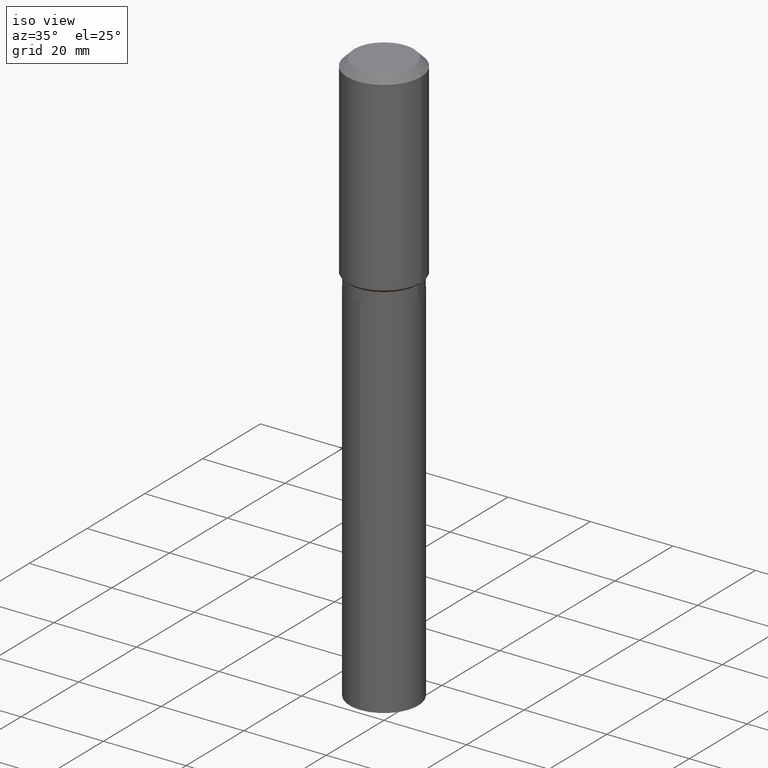
[diagram: clean part render]
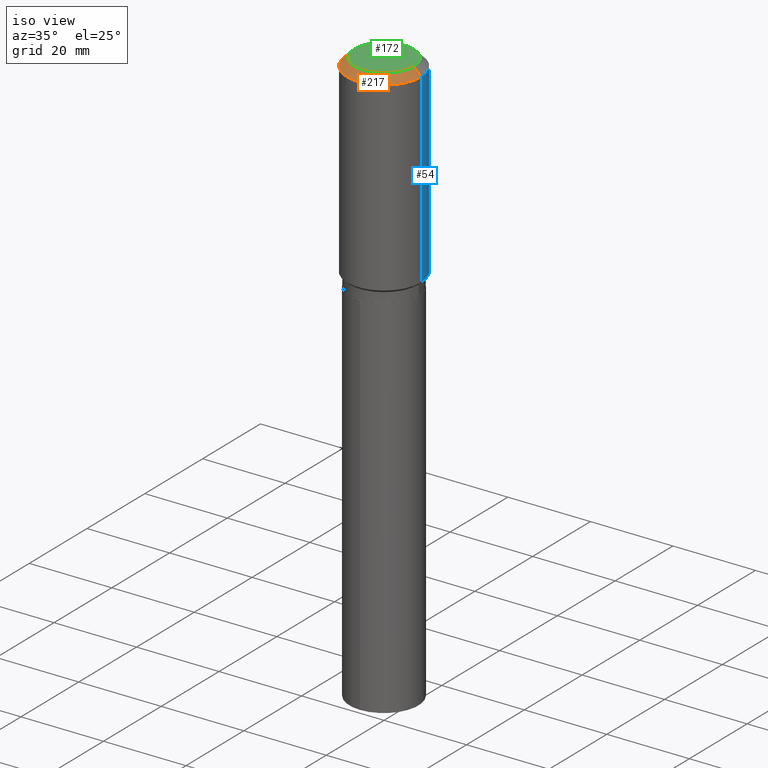
[diagram: same view with three faces highlighted in distinct colors, each labeled with its STEP entity id]
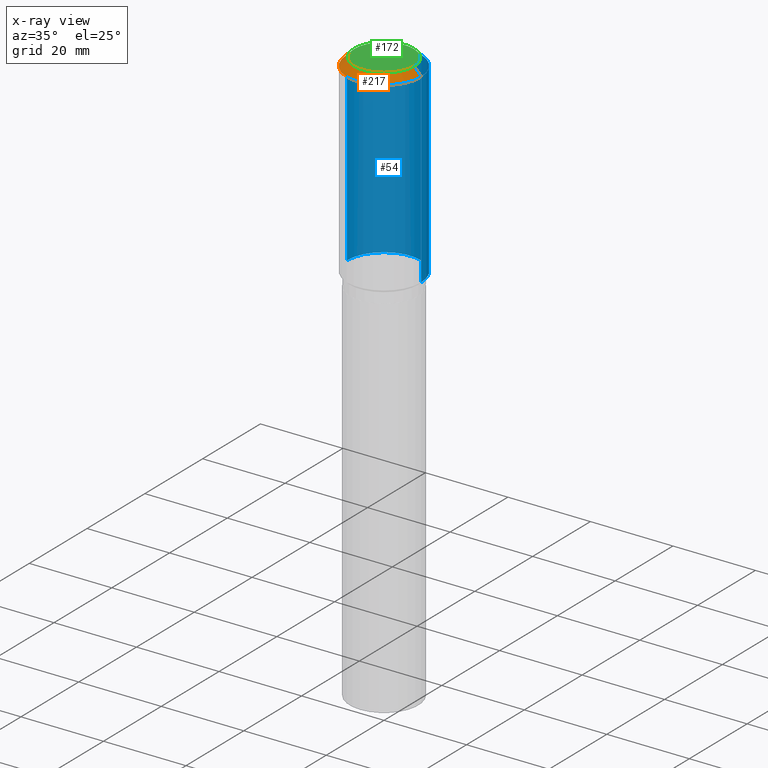
[diagram: x-ray of the same camera — body ghosted, the three highlighted faces saturated]
A machine part, iso view with three faces highlighted in distinct colors.
The next image is the same camera in x-ray (body ghosted, the three faces saturated) — at least one of them is partly hidden behind the body in this view.
Their STEP definitions:

[orange] entity #217 — the highlighted conical surface has half-angle 45 deg.
#29 = CARTESIAN_POINT ( 'NONE',  ( -0.3543499999999999983, 2.226971542354313655E-15, -0.07087000000000043265 ) ) ;
#72 = CARTESIAN_POINT ( 'NONE',  ( -0.3543499999999999983, -8.249709644559009364E-16, -0.07087000000000043265 ) ) ;
#74 = CARTESIAN_POINT ( 'NONE',  ( 0.3543499999999999983, -2.721854107321943733E-15, -0.07087000000000043265 ) ) ;
#81 = VECTOR ( 'NONE', #412, 39.37007874015748143 ) ;
#87 = ORIENTED_EDGE ( 'NONE', *, *, #313, .T. ) ;
#94 = EDGE_LOOP ( 'NONE', ( #303, #175, #196, #87 ) ) ;
#116 = VERTEX_POINT ( 'NONE', #74 ) ;
#139 = AXIS2_PLACEMENT_3D ( 'NONE', #218, #330, #488 ) ;
#154 = DIRECTION ( 'NONE',  ( 1.000000000000000000, -6.982962677686266711E-15, 0.000000000000000000 ) ) ;
#175 = ORIENTED_EDGE ( 'NONE', *, *, #381, .F. ) ;
#184 = EDGE_CURVE ( 'NONE', #419, #199, #477, .T. ) ;
#196 = ORIENTED_EDGE ( 'NONE', *, *, #184, .T. ) ;
#197 = CARTESIAN_POINT ( 'NONE',  ( 1.733103742943417062E-30, -2.474412824838152853E-16, -0.07087000000000043265 ) ) ;
#199 = VERTEX_POINT ( 'NONE', #72 ) ;
#214 = CIRCLE ( 'NONE', #490, 0.3543499999999999983 ) ;
#217 = ADVANCED_FACE ( 'NONE', ( #287 ), #350, .T. ) ;
#218 = CARTESIAN_POINT ( 'NONE',  ( 1.733103742943417062E-30, -2.474412824838152853E-16, -0.07087000000000043265 ) ) ;
#226 = DIRECTION ( 'NONE',  ( -2.445468806185136597E-29, 3.491481338843145583E-15, 1.000000000000000000 ) ) ;
#231 = LINE ( 'NONE', #315, #451 ) ;
#287 = FACE_OUTER_BOUND ( 'NONE', #94, .T. ) ;
#295 = AXIS2_PLACEMENT_3D ( 'NONE', #450, #226, #378 ) ;
#303 = ORIENTED_EDGE ( 'NONE', *, *, #367, .F. ) ;
#313 = EDGE_CURVE ( 'NONE', #199, #116, #214, .T. ) ;
#315 = CARTESIAN_POINT ( 'NONE',  ( 0.3543499999999999983, -2.678458747994157430E-15, -0.07087000000000043265 ) ) ;
#330 = DIRECTION ( 'NONE',  ( 2.445468806185136597E-29, -3.491481338843145583E-15, -1.000000000000000000 ) ) ;
#350 = CONICAL_SURFACE ( 'NONE', #139, 0.3543499999999999983, 0.7853981633974452814 ) ;
#367 = EDGE_CURVE ( 'NONE', #423, #116, #231, .T. ) ;
#378 = DIRECTION ( 'NONE',  ( 1.000000000000000000, -6.982962677686266711E-15, 4.876249319814053138E-29 ) ) ;
#381 = EDGE_CURVE ( 'NONE', #419, #423, #386, .T. ) ;
#386 = CIRCLE ( 'NONE', #295, 0.2834800000000000098 ) ;
#387 = DIRECTION ( 'NONE',  ( -2.445468806185136597E-29, 3.491481338843145583E-15, 1.000000000000000000 ) ) ;
#412 = DIRECTION ( 'NONE',  ( -0.7071067811865453523, 2.468850131082234184E-15, -0.7071067811865496822 ) ) ;
#419 = VERTEX_POINT ( 'NONE', #437 ) ;
#423 = VERTEX_POINT ( 'NONE', #433 ) ;
#433 = CARTESIAN_POINT ( 'NONE',  ( 0.2834800000000000098, -2.311636360201216027E-15, 3.860086710927458874E-18 ) ) ;
#437 = CARTESIAN_POINT ( 'NONE',  ( -0.2834800000000000098, 2.103250901112408108E-15, 3.860086710898179346E-18 ) ) ;
#450 = CARTESIAN_POINT ( 'NONE',  ( -9.439721640706191963E-47, 1.347742071746725396E-32, 3.860086710912455110E-18 ) ) ;
#451 = VECTOR ( 'NONE', #467, 39.37007874015748143 ) ;
#467 = DIRECTION ( 'NONE',  ( 0.7071067811865453523, -7.319954787623248157E-15, -0.7071067811865496822 ) ) ;
#477 = LINE ( 'NONE', #29, #81 ) ;
#488 = DIRECTION ( 'NONE',  ( -1.000000000000000000, 6.982962677686266711E-15, 0.000000000000000000 ) ) ;
#490 = AXIS2_PLACEMENT_3D ( 'NONE', #197, #387, #154 ) ;

[blue] entity #54 — the highlighted cylindrical surface (partial cylindrical patch) has radius 9.0005 mm, axis along (-0, 0, 1).
#6 = EDGE_CURVE ( 'NONE', #116, #199, #254, .T. ) ;
#8 = VERTEX_POINT ( 'NONE', #355 ) ;
#11 = ORIENTED_EDGE ( 'NONE', *, *, #117, .F. ) ;
#13 = DIRECTION ( 'NONE',  ( -2.445468806185136597E-29, 3.491481338843145583E-15, 1.000000000000000000 ) ) ;
#31 = LINE ( 'NONE', #329, #332 ) ;
#54 = ADVANCED_FACE ( 'NONE', ( #91 ), #168, .T. ) ;
#72 = CARTESIAN_POINT ( 'NONE',  ( -0.3543499999999999983, -8.249709644559009364E-16, -0.07087000000000043265 ) ) ;
#73 = EDGE_LOOP ( 'NONE', ( #224, #328, #413, #11 ) ) ;
#74 = CARTESIAN_POINT ( 'NONE',  ( 0.3543499999999999983, -2.721854107321943733E-15, -0.07087000000000043265 ) ) ;
#91 = FACE_OUTER_BOUND ( 'NONE', #73, .T. ) ;
#116 = VERTEX_POINT ( 'NONE', #74 ) ;
#117 = EDGE_CURVE ( 'NONE', #8, #116, #149, .T. ) ;
#123 = DIRECTION ( 'NONE',  ( 1.000000000000000000, -6.982962677686269077E-15, 0.000000000000000000 ) ) ;
#140 = EDGE_CURVE ( 'NONE', #421, #199, #31, .T. ) ;
#149 = LINE ( 'NONE', #373, #170 ) ;
#163 = CARTESIAN_POINT ( 'NONE',  ( 4.509322205165082609E-29, -6.438117014759818997E-15, -1.843950000000000200 ) ) ;
#168 = CYLINDRICAL_SURFACE ( 'NONE', #211, 0.3543500000000001648 ) ;
#170 = VECTOR ( 'NONE', #483, 39.37007874015748143 ) ;
#181 = AXIS2_PLACEMENT_3D ( 'NONE', #163, #308, #123 ) ;
#199 = VERTEX_POINT ( 'NONE', #72 ) ;
#209 = CARTESIAN_POINT ( 'NONE',  ( 0.000000000000000000, 0.000000000000000000, 0.000000000000000000 ) ) ;
#211 = AXIS2_PLACEMENT_3D ( 'NONE', #209, #465, #310 ) ;
#224 = ORIENTED_EDGE ( 'NONE', *, *, #364, .T. ) ;
#254 = CIRCLE ( 'NONE', #417, 0.3543499999999999983 ) ;
#308 = DIRECTION ( 'NONE',  ( -2.445468806185136597E-29, 3.491481338843145583E-15, 1.000000000000000000 ) ) ;
#310 = DIRECTION ( 'NONE',  ( 1.000000000000000000, -6.982962677686265922E-15, 4.876176775795935793E-29 ) ) ;
#328 = ORIENTED_EDGE ( 'NONE', *, *, #140, .T. ) ;
#329 = CARTESIAN_POINT ( 'NONE',  ( -0.3543500000000001648, 2.517808184165916180E-15, -1.743024649231826627E-29 ) ) ;
#332 = VECTOR ( 'NONE', #487, 39.37007874015748143 ) ;
#355 = CARTESIAN_POINT ( 'NONE',  ( 0.3543500000000002204, -8.912529839597949663E-15, -1.843950000000000200 ) ) ;
#363 = CARTESIAN_POINT ( 'NONE',  ( -0.3543500000000002204, -3.920308830593902817E-15, -1.843950000000000200 ) ) ;
#364 = EDGE_CURVE ( 'NONE', #8, #421, #375, .T. ) ;
#373 = CARTESIAN_POINT ( 'NONE',  ( 0.3543500000000001648, -2.474412824838129483E-15, 1.727873240503290590E-29 ) ) ;
#375 = CIRCLE ( 'NONE', #181, 0.3543500000000002204 ) ;
#390 = CARTESIAN_POINT ( 'NONE',  ( 1.733103742943417062E-30, -2.474412824838152853E-16, -0.07087000000000043265 ) ) ;
#413 = ORIENTED_EDGE ( 'NONE', *, *, #6, .F. ) ;
#417 = AXIS2_PLACEMENT_3D ( 'NONE', #390, #13, #462 ) ;
#421 = VERTEX_POINT ( 'NONE', #363 ) ;
#462 = DIRECTION ( 'NONE',  ( 1.000000000000000000, -6.982962677686266711E-15, 0.000000000000000000 ) ) ;
#465 = DIRECTION ( 'NONE',  ( -2.445468806185136597E-29, 3.491481338843145583E-15, 1.000000000000000000 ) ) ;
#483 = DIRECTION ( 'NONE',  ( -2.445468806185136877E-29, 3.491481338843145188E-15, 1.000000000000000000 ) ) ;
#487 = DIRECTION ( 'NONE',  ( -2.445468806185136877E-29, 3.491481338843145188E-15, 1.000000000000000000 ) ) ;

[green] entity #172 — the highlighted planar face has unit normal (0, -0, -1).
#14 = EDGE_CURVE ( 'NONE', #423, #419, #167, .T. ) ;
#34 = AXIS2_PLACEMENT_3D ( 'NONE', #400, #239, #395 ) ;
#66 = DIRECTION ( 'NONE',  ( 2.438088387897960049E-29, -3.491481338843145188E-15, -1.000000000000000000 ) ) ;
#143 = PLANE ( 'NONE',  #317 ) ;
#167 = CIRCLE ( 'NONE', #34, 0.2834800000000000098 ) ;
#172 = ADVANCED_FACE ( 'NONE', ( #253 ), #143, .F. ) ;
#221 = DIRECTION ( 'NONE',  ( -1.000000000000000000, 6.982962677686265922E-15, -4.876176775795935793E-29 ) ) ;
#226 = DIRECTION ( 'NONE',  ( -2.445468806185136597E-29, 3.491481338843145583E-15, 1.000000000000000000 ) ) ;
#239 = DIRECTION ( 'NONE',  ( -2.445468806185136597E-29, 3.491481338843145583E-15, 1.000000000000000000 ) ) ;
#242 = ORIENTED_EDGE ( 'NONE', *, *, #14, .T. ) ;
#253 = FACE_OUTER_BOUND ( 'NONE', #331, .T. ) ;
#256 = ORIENTED_EDGE ( 'NONE', *, *, #381, .T. ) ;
#295 = AXIS2_PLACEMENT_3D ( 'NONE', #450, #226, #378 ) ;
#317 = AXIS2_PLACEMENT_3D ( 'NONE', #408, #66, #221 ) ;
#331 = EDGE_LOOP ( 'NONE', ( #256, #242 ) ) ;
#378 = DIRECTION ( 'NONE',  ( 1.000000000000000000, -6.982962677686266711E-15, 4.876249319814053138E-29 ) ) ;
#381 = EDGE_CURVE ( 'NONE', #419, #423, #386, .T. ) ;
#386 = CIRCLE ( 'NONE', #295, 0.2834800000000000098 ) ;
#395 = DIRECTION ( 'NONE',  ( 1.000000000000000000, -6.982962677686266711E-15, 4.876249319814053138E-29 ) ) ;
#400 = CARTESIAN_POINT ( 'NONE',  ( -9.439721640706191963E-47, 1.347742071746725396E-32, 3.860086710912455110E-18 ) ) ;
#408 = CARTESIAN_POINT ( 'NONE',  ( -4.719860820353095981E-47, 6.738710358733626979E-33, 1.930043355456227555E-18 ) ) ;
#419 = VERTEX_POINT ( 'NONE', #437 ) ;
#423 = VERTEX_POINT ( 'NONE', #433 ) ;
#433 = CARTESIAN_POINT ( 'NONE',  ( 0.2834800000000000098, -2.311636360201216027E-15, 3.860086710927458874E-18 ) ) ;
#437 = CARTESIAN_POINT ( 'NONE',  ( -0.2834800000000000098, 2.103250901112408108E-15, 3.860086710898179346E-18 ) ) ;
#450 = CARTESIAN_POINT ( 'NONE',  ( -9.439721640706191963E-47, 1.347742071746725396E-32, 3.860086710912455110E-18 ) ) ;